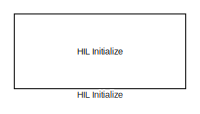
[diagram: root canvas - part 1/3, top center region]
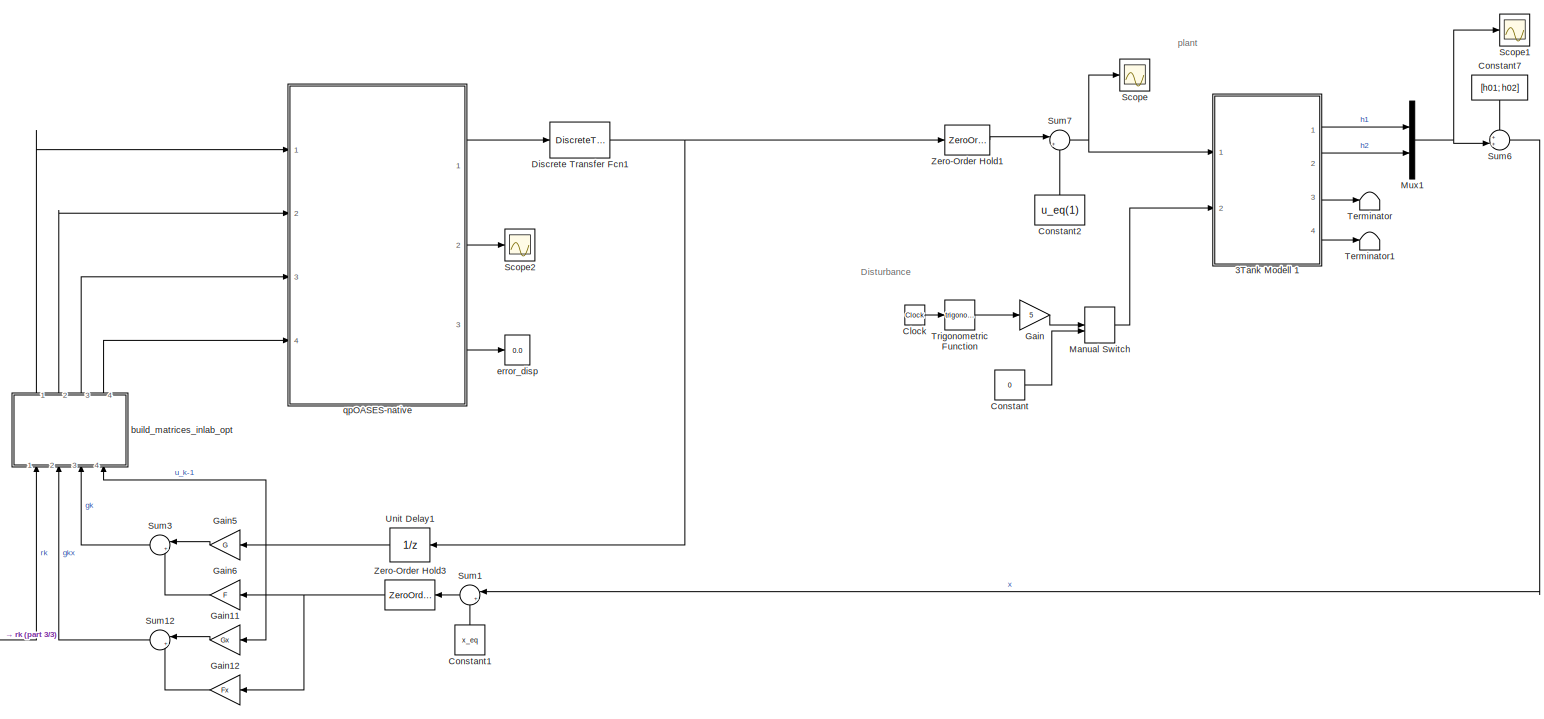
[diagram: root canvas - part 2/3, most of the canvas]
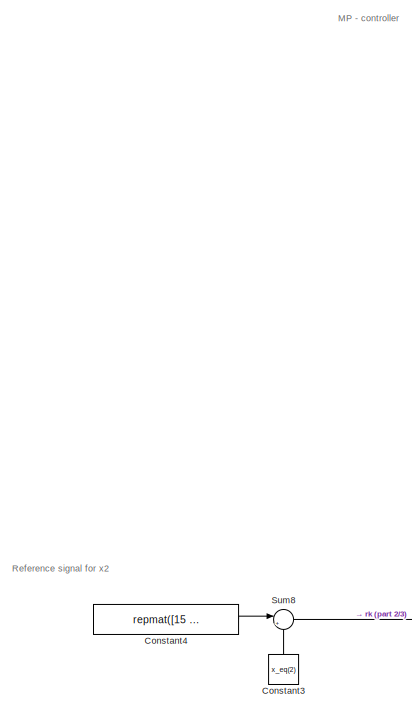
[diagram: root canvas - part 3/3, left side, full height]
MODEL slx_2c5922e8d178
KIND model
CONFIG AbsTol = auto
CONFIG EnableMultiTasking = on
CONFIG FixedStep = Td
CONFIG MaxStep = auto
CONFIG MinStep = auto
CONFIG RelTol = 1e-3
CONFIG SampleTimeConstraint = Unconstrained
CONFIG Solver = ode1
CONFIG SolverName = ode1
CONFIG StartTime = 0.0
CONFIG StopTime = inf
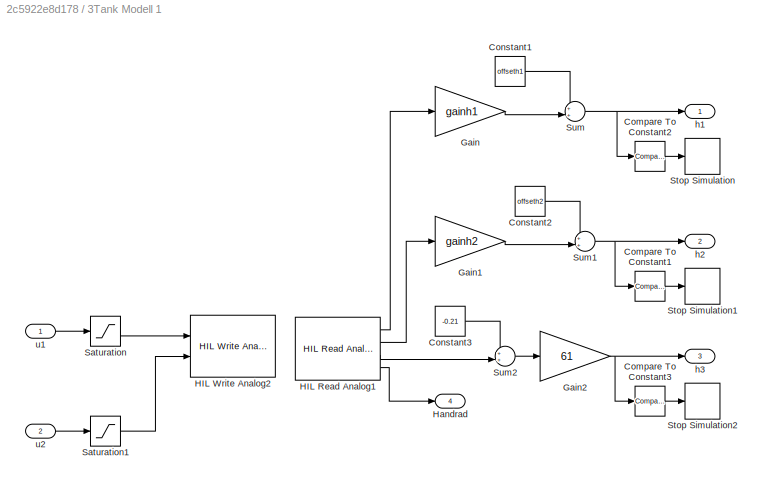
BLOCK [SubSystem] 3Tank Modell 1
  Ports = [2, 4]
  RequestExecContextInheritance = off
BLOCK [Reference] 3Tank Modell 1/Compare To Constant1  REF=simulink/Logic and Bit
Operations/Compare
To Constant
  Ports = [1, 1]
  SourceBlock = simulink/Logic and Bit\nOperations/Compare\nTo Constant
  SourceProductBaseCode = SL
  SourceProductName = Simulink
  SourceType = Compare To Constant
BLOCK [Reference] 3Tank Modell 1/Compare To Constant2  REF=simulink/Logic and Bit
Operations/Compare
To Constant
  Ports = [1, 1]
  SourceBlock = simulink/Logic and Bit\nOperations/Compare\nTo Constant
  SourceProductBaseCode = SL
  SourceProductName = Simulink
  SourceType = Compare To Constant
BLOCK [Reference] 3Tank Modell 1/Compare To Constant3  REF=simulink/Logic and Bit
Operations/Compare
To Constant
  Commented = on
  Ports = [1, 1]
  SourceBlock = simulink/Logic and Bit\nOperations/Compare\nTo Constant
  SourceProductBaseCode = SL
  SourceProductName = Simulink
  SourceType = Compare To Constant
BLOCK [Constant] 3Tank Modell 1/Constant1
  Value = offseth1
BLOCK [Constant] 3Tank Modell 1/Constant2
  Value = offseth2
BLOCK [Constant] 3Tank Modell 1/Constant3
  Value = -0.21
BLOCK [Gain] 3Tank Modell 1/Gain
  Gain = gainh1
  OutDataTypeStr = Inherit: Inherit via internal rule
  ParamDataTypeStr = Inherit: Inherit via internal rule
  SaturateOnIntegerOverflow = off
BLOCK [Gain] 3Tank Modell 1/Gain1
  Gain = gainh2
  OutDataTypeStr = Inherit: Inherit via internal rule
  ParamDataTypeStr = Inherit: Inherit via internal rule
  SaturateOnIntegerOverflow = off
BLOCK [Gain] 3Tank Modell 1/Gain2
  Gain = 61
  OutDataTypeStr = Inherit: Inherit via internal rule
  ParamDataTypeStr = Inherit: Inherit via internal rule
  SaturateOnIntegerOverflow = off
BLOCK [Reference] 3Tank Modell 1/HIL Read Analog1  REF=quarc_library/Data Acquisition/Generic/Immediate I//O/HIL Read Analog
  AttributesFormatString = (%<object_name>)
  Ports = [0, 4]
  SourceBlock = quarc_library/Data Acquisition/Generic/Immediate I//O/HIL Read Analog
  SourceProductName = QUARC Targets
  SourceType = HIL Read Analog
  UserDataPersistent = on
BLOCK [Reference] 3Tank Modell 1/HIL Write Analog2  REF=quarc_library/Data Acquisition/Generic/Immediate I//O/HIL Write Analog
  AttributesFormatString = (%<object_name>)
  Ports = [2]
  SourceBlock = quarc_library/Data Acquisition/Generic/Immediate I//O/HIL Write Analog
  SourceProductName = QUARC Targets
  SourceType = HIL Write Analog
  UserDataPersistent = on
BLOCK [Outport] 3Tank Modell 1/Handrad
  IconDisplay = Port number
  Port = 4
BLOCK [Saturate] 3Tank Modell 1/Saturation
  InputPortMap = u0
  LowerLimit = 0
  Ports = [1, 1]
  UpperLimit = 10
BLOCK [Saturate] 3Tank Modell 1/Saturation1
  InputPortMap = u0
  LowerLimit = 0
  Ports = [1, 1]
  UpperLimit = 10
BLOCK [Stop] 3Tank Modell 1/Stop Simulation
BLOCK [Stop] 3Tank Modell 1/Stop Simulation1
BLOCK [Stop] 3Tank Modell 1/Stop Simulation2
  Commented = on
BLOCK [Sum] 3Tank Modell 1/Sum
  IconShape = round
  InputSameDT = off
  Inputs = ++|
  OutDataTypeStr = Inherit: Inherit via internal rule
  Ports = [2, 1]
  SaturateOnIntegerOverflow = off
BLOCK [Sum] 3Tank Modell 1/Sum1
  IconShape = round
  InputSameDT = off
  Inputs = ++|
  OutDataTypeStr = Inherit: Inherit via internal rule
  Ports = [2, 1]
  SaturateOnIntegerOverflow = off
BLOCK [Sum] 3Tank Modell 1/Sum2
  IconShape = round
  InputSameDT = off
  Inputs = ++|
  OutDataTypeStr = Inherit: Inherit via internal rule
  Ports = [2, 1]
  SaturateOnIntegerOverflow = off
BLOCK [Outport] 3Tank Modell 1/h1
  IconDisplay = Port number
BLOCK [Outport] 3Tank Modell 1/h2
  IconDisplay = Port number
  Port = 2
BLOCK [Outport] 3Tank Modell 1/h3
  IconDisplay = Port number
  Port = 3
BLOCK [Inport] 3Tank Modell 1/u1
  IconDisplay = Port number
BLOCK [Inport] 3Tank Modell 1/u2
  IconDisplay = Port number
  Port = 2
BLOCK [Clock] Clock
BLOCK [Constant] Constant
  Value = 0
BLOCK [Constant] Constant1
  Value = x_eq
BLOCK [Constant] Constant2
  Value = u_eq(1)
BLOCK [Constant] Constant3
  Value = x_eq(2)
BLOCK [Constant] Constant4
  Value = repmat([15 + h(2)],Np,1)
BLOCK [Constant] Constant7
  Value = [h01; h02]
BLOCK [DiscreteTransferFcn] Discrete Transfer Fcn1
  Denominator = [1 -1]
  InputPortMap = u0
  Numerator = [1 0]
  Ports = [1, 1]
  SampleTime = Ts
BLOCK [Gain] Gain
  Gain = 5
  OutDataTypeStr = Inherit: Inherit via internal rule
  ParamDataTypeStr = Inherit: Inherit via internal rule
  SaturateOnIntegerOverflow = off
BLOCK [Gain] Gain11
  Gain = Gx
  Multiplication = Matrix(K*u)
  OutDataTypeStr = Inherit: Inherit via internal rule
  ParamDataTypeStr = Inherit: Inherit via internal rule
  SaturateOnIntegerOverflow = off
BLOCK [Gain] Gain12
  Gain = Fx
  Multiplication = Matrix(K*u)
  OutDataTypeStr = Inherit: Inherit via internal rule
  ParamDataTypeStr = Inherit: Inherit via internal rule
  SaturateOnIntegerOverflow = off
BLOCK [Gain] Gain5
  Gain = G
  Multiplication = Matrix(K*u)
  OutDataTypeStr = Inherit: Inherit via internal rule
  ParamDataTypeStr = Inherit: Inherit via internal rule
  SaturateOnIntegerOverflow = off
BLOCK [Gain] Gain6
  Gain = F
  Multiplication = Matrix(K*u)
  OutDataTypeStr = Inherit: Inherit via internal rule
  ParamDataTypeStr = Inherit: Inherit via internal rule
  SaturateOnIntegerOverflow = off
BLOCK [Reference] HIL Initialize  REF=quarc_library/Data Acquisition/Generic/Configuration/HIL Initialize
  AttributesFormatString = %<object_name> (%<board_type>-%<board_number>)
  Ports = []
  SourceBlock = quarc_library/Data Acquisition/Generic/Configuration/HIL Initialize
  SourceProductName = QUARC Targets
  SourceType = HIL Initialize
  UserDataPersistent = on
BLOCK [ManualSwitch] Manual Switch
BLOCK [Mux] Mux1
  DisplayOption = bar
  Inputs = 2
  Ports = [2, 1]
BLOCK [Scope] Scope
  Floating = off
  NumInputPorts = 1
  Ports = [1]
  ScopeSpecificationString = Simulink.scopes.TimeScopeBlockCfg('CurrentConfiguration', extmgr.ConfigurationSet(extmgr.Configuration('Core','General UI',true),extmgr.Configuration('Core','Source UI',true),extmgr.Configuration('Sources','WiredSimulink',true),extmgr.Configuration('Visuals','Time Domain',true,'SerializedDisplays',{struct('MinYLimReal','3.09203','MaxYLimReal','6.55643','YLabelReal','','MinYLimMag','3.09203','MaxYL...<+1348ch>
BLOCK [Scope] Scope1
  Floating = off
  NumInputPorts = 1
  Ports = [1]
  ScopeSpecificationString = Simulink.scopes.TimeScopeBlockCfg('CurrentConfiguration', extmgr.ConfigurationSet(extmgr.Configuration('Core','General UI',true),extmgr.Configuration('Core','Source UI',true),extmgr.Configuration('Sources','WiredSimulink',true,'DataLoggingVariableName','ScopeData2'),extmgr.Configuration('Visuals','Time Domain',true,'SerializedDisplays',{struct('MinYLimReal','-2.60032','MaxYLimReal','23.54177','YLa...<+1691ch>
BLOCK [Scope] Scope2
  Floating = off
  NumInputPorts = 1
  Ports = [1]
  ScopeSpecificationString = Simulink.scopes.TimeScopeBlockCfg('CurrentConfiguration', extmgr.ConfigurationSet(extmgr.Configuration('Core','General UI',true),extmgr.Configuration('Core','Source UI',true),extmgr.Configuration('Sources','WiredSimulink',true,'DataLoggingVariableName','ScopeData1'),extmgr.Configuration('Visuals','Time Domain',true,'SerializedDisplays',{struct('MinYLimReal','-2.00000','MaxYLimReal','18.00000','YLa...<+1393ch>
BLOCK [Sum] Sum1
  IconShape = round
  InputSameDT = off
  Inputs = |+-
  OutDataTypeStr = Inherit: Inherit via internal rule
  Ports = [2, 1]
  SaturateOnIntegerOverflow = off
BLOCK [Sum] Sum12
  IconShape = round
  InputSameDT = off
  Inputs = |++
  OutDataTypeStr = Inherit: Inherit via internal rule
  Ports = [2, 1]
  SaturateOnIntegerOverflow = off
BLOCK [Sum] Sum3
  IconShape = round
  InputSameDT = off
  Inputs = |++
  OutDataTypeStr = Inherit: Inherit via internal rule
  Ports = [2, 1]
  SaturateOnIntegerOverflow = off
BLOCK [Sum] Sum6
  IconShape = round
  InputSameDT = off
  Inputs = ++|
  OutDataTypeStr = Inherit: Inherit via internal rule
  Ports = [2, 1]
  SaturateOnIntegerOverflow = off
BLOCK [Sum] Sum7
  IconShape = round
  InputSameDT = off
  Inputs = |++
  OutDataTypeStr = Inherit: Inherit via internal rule
  Ports = [2, 1]
  SaturateOnIntegerOverflow = off
BLOCK [Sum] Sum8
  IconShape = round
  InputSameDT = off
  Inputs = |+-
  OutDataTypeStr = Inherit: Inherit via internal rule
  Ports = [2, 1]
  SaturateOnIntegerOverflow = off
BLOCK [Terminator] Terminator
BLOCK [Terminator] Terminator1
BLOCK [Trigonometry] Trigonometric Function
  Ports = [1, 1]
BLOCK [UnitDelay] Unit Delay1
  InputProcessing = Elements as channels (sample based)
  SampleTime = Ts
BLOCK [ZeroOrderHold] Zero-Order Hold1
  SampleTime = Ts
BLOCK [ZeroOrderHold] Zero-Order Hold3
  SampleTime = Ts
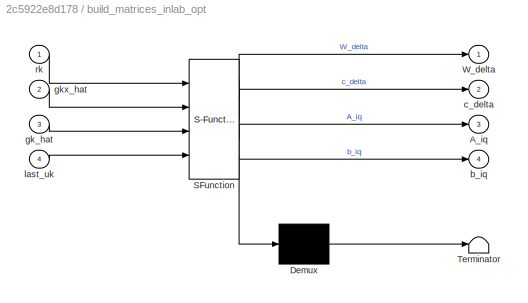
BLOCK [SubSystem] build_matrices_inlab_opt
  ErrorFcn = Stateflow.Translate.translate
  PermitHierarchicalResolution = ExplicitOnly
  Ports = [4, 4]
  RequestExecContextInheritance = off
  SFBlockType = MATLAB Function
  TreatAsAtomicUnit = on
BLOCK [Demux] build_matrices_inlab_opt/ Demux 
  Outputs = 1
  Ports = [1, 1]
BLOCK [S-Function] build_matrices_inlab_opt/ SFunction 
  EnableBusSupport = on
  FunctionName = sf_sfun
  Parameters = H,Hx,L,M,Nc,Np,Q,R,h,m,n,p,roh,u_eq,u_lower_limit,u_upper_limit,x_eq,x_lower_limit,x_upper_limit
  PortCounts = [4 5]
  Ports = [4, 5]
  SFcnIsStateOwnerBlock = off
  SFunctionDeploymentMode = off
  Tag = Stateflow S-Function MPC 2
BLOCK [Terminator] build_matrices_inlab_opt/ Terminator 
BLOCK [Outport] build_matrices_inlab_opt/A_iq
  IconDisplay = Port number
  Port = 3
BLOCK [Outport] build_matrices_inlab_opt/W_delta
  IconDisplay = Port number
BLOCK [Outport] build_matrices_inlab_opt/b_iq
  IconDisplay = Port number
  Port = 4
BLOCK [Outport] build_matrices_inlab_opt/c_delta
  IconDisplay = Port number
  Port = 2
BLOCK [Inport] build_matrices_inlab_opt/gk_hat
  IconDisplay = Port number
  Port = 3
BLOCK [Inport] build_matrices_inlab_opt/gkx_hat
  IconDisplay = Port number
  Port = 2
BLOCK [Inport] build_matrices_inlab_opt/last_uk
  IconDisplay = Port number
  Port = 4
BLOCK [Inport] build_matrices_inlab_opt/rk
  IconDisplay = Port number
BLOCK [Display] error_disp
  Decimation = 1
  Ports = [1]
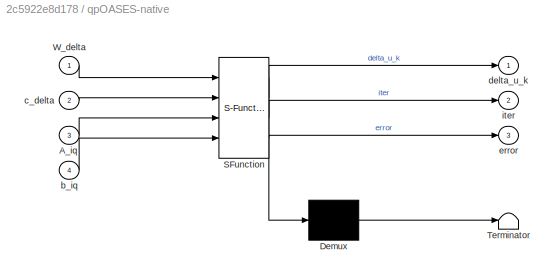
BLOCK [SubSystem] qpOASES-native
  ErrorFcn = Stateflow.Translate.translate
  PermitHierarchicalResolution = ExplicitOnly
  Ports = [4, 3]
  RequestExecContextInheritance = off
  SFBlockType = MATLAB Function
  TreatAsAtomicUnit = on
BLOCK [Demux] qpOASES-native/ Demux 
  Outputs = 1
  Ports = [1, 1]
BLOCK [S-Function] qpOASES-native/ SFunction 
  EnableBusSupport = on
  FunctionName = sf_sfun
  Parameters = Nc,m
  PortCounts = [4 4]
  Ports = [4, 4]
  SFcnIsStateOwnerBlock = off
  SFunctionDeploymentMode = off
  Tag = Stateflow S-Function MPC 5
BLOCK [Terminator] qpOASES-native/ Terminator 
BLOCK [Inport] qpOASES-native/A_iq
  IconDisplay = Port number
  Port = 3
BLOCK [Inport] qpOASES-native/W_delta
  IconDisplay = Port number
BLOCK [Inport] qpOASES-native/b_iq
  IconDisplay = Port number
  Port = 4
BLOCK [Inport] qpOASES-native/c_delta
  IconDisplay = Port number
  Port = 2
BLOCK [Outport] qpOASES-native/delta_u_k
  IconDisplay = Port number
BLOCK [Outport] qpOASES-native/error
  IconDisplay = Port number
  Port = 3
BLOCK [Outport] qpOASES-native/iter
  IconDisplay = Port number
  Port = 2
ANNOTATION (root): Disturbance
ANNOTATION (root): MP - controller
ANNOTATION (root): Reference signal for x2
ANNOTATION (root): plant
LINE 3Tank Modell 1/Compare To Constant1:1 -> 3Tank Modell 1/Stop Simulation1:1
LINE 3Tank Modell 1/Compare To Constant2:1 -> 3Tank Modell 1/Stop Simulation:1
LINE 3Tank Modell 1/Compare To Constant3:1 -> 3Tank Modell 1/Stop Simulation2:1
LINE 3Tank Modell 1/Constant1:1 -> 3Tank Modell 1/Sum:1
LINE 3Tank Modell 1/Constant2:1 -> 3Tank Modell 1/Sum1:1
LINE 3Tank Modell 1/Constant3:1 -> 3Tank Modell 1/Sum2:1
LINE 3Tank Modell 1/Gain1:1 -> 3Tank Modell 1/Sum1:2
NET 3Tank Modell 1/Gain2:1 -> 3Tank Modell 1/Compare To Constant3:1, 3Tank Modell 1/h3:1
LINE 3Tank Modell 1/Gain:1 -> 3Tank Modell 1/Sum:2
LINE 3Tank Modell 1/HIL Read Analog1:1 -> 3Tank Modell 1/Gain:1
LINE 3Tank Modell 1/HIL Read Analog1:2 -> 3Tank Modell 1/Gain1:1
LINE 3Tank Modell 1/HIL Read Analog1:3 -> 3Tank Modell 1/Sum2:2
LINE 3Tank Modell 1/HIL Read Analog1:4 -> 3Tank Modell 1/Handrad:1
LINE 3Tank Modell 1/Saturation1:1 -> 3Tank Modell 1/HIL Write Analog2:2
LINE 3Tank Modell 1/Saturation:1 -> 3Tank Modell 1/HIL Write Analog2:1
NET 3Tank Modell 1/Sum1:1 -> 3Tank Modell 1/Compare To Constant1:1, 3Tank Modell 1/h2:1
LINE 3Tank Modell 1/Sum2:1 -> 3Tank Modell 1/Gain2:1
NET 3Tank Modell 1/Sum:1 -> 3Tank Modell 1/Compare To Constant2:1, 3Tank Modell 1/h1:1
LINE 3Tank Modell 1/u1:1 -> 3Tank Modell 1/Saturation:1
LINE 3Tank Modell 1/u2:1 -> 3Tank Modell 1/Saturation1:1
LINE 3Tank Modell 1:1 -> Mux1:1
LINE 3Tank Modell 1:2 -> Mux1:2
LINE 3Tank Modell 1:3 -> Terminator:1
LINE 3Tank Modell 1:4 -> Terminator1:1
LINE Clock:1 -> Trigonometric Function:1
LINE Constant1:1 -> Sum1:2
LINE Constant2:1 -> Sum7:2
LINE Constant3:1 -> Sum8:2
LINE Constant4:1 -> Sum8:1
LINE Constant7:1 -> Sum6:1
LINE Constant:1 -> Manual Switch:2
NET Discrete Transfer Fcn1:1 -> Unit Delay1:1, Zero-Order Hold1:1
LINE Gain11:1 -> Sum12:1
LINE Gain12:1 -> Sum12:2
LINE Gain5:1 -> Sum3:1
LINE Gain6:1 -> Sum3:2
LINE Gain:1 -> Manual Switch:1
LINE Manual Switch:1 -> 3Tank Modell 1:2
NET Mux1:1 -> Scope1:1, Sum6:2
LINE Sum12:1 -> build_matrices_inlab_opt:2
LINE Sum1:1 -> Zero-Order Hold3:1
LINE Sum3:1 -> build_matrices_inlab_opt:3
LINE Sum6:1 -> Sum1:1
NET Sum7:1 -> 3Tank Modell 1:1, Scope:1
LINE Sum8:1 -> build_matrices_inlab_opt:1
LINE Trigonometric Function:1 -> Gain:1
NET Unit Delay1:1 -> Gain11:1, Gain5:1, build_matrices_inlab_opt:4
LINE Zero-Order Hold1:1 -> Sum7:1
NET Zero-Order Hold3:1 -> Gain12:1, Gain6:1
LINE build_matrices_inlab_opt:1 -> qpOASES-native:1
LINE build_matrices_inlab_opt:2 -> qpOASES-native:2
LINE build_matrices_inlab_opt:3 -> qpOASES-native:3
LINE build_matrices_inlab_opt:4 -> qpOASES-native:4
LINE qpOASES-native:1 -> Discrete Transfer Fcn1:1
LINE qpOASES-native:2 -> Scope2:1
LINE qpOASES-native:3 -> error_disp:1
note: NET lines group one-source signal fan-out (src -> all destinations, sorted); 1:1 wires keep LINE
CHART build_matrices_inlab_opt states=1 transitions=1
  STATE_LABEL 'eML_blk_kernel()'
  STATE_LABEL 'SCRIPT:\nfunction [W_delta, c_delta, A_iq, b_iq] = fcn(rk, gkx_hat, gk_hat, last_uk, Hx, Q, ...\n    R, Np, Nc, m, n, p, u_eq, x_eq, h, x_upper_limit, x_lower_limit, u_upper_limit, ...\n    u_lower_limit, H, L, M, roh)\n    \n    %% Constraints\n    % constrint for the actuatiting quantity   \n    u_min = -u_eq(1) + u_lower_limit;\n    u_max = u_min + u_upper_limit - u_lower_limit;\n    actuating_constrain...<+980ch>'
CHART qpOASES-native states=1 transitions=1
  STATE_LABEL 'eML_blk_kernel()'
  STATE_LABEL "SCRIPT:\nfunction [delta_u_k, iter, error] = fcn(W_delta, c_delta, A_iq, b_iq, m, Nc)\n    \n    persistent initialized options;\n    % qpOASES uses row-major matrix storage (Matlab: column-major)!!!\n    A_iq_tr = A_iq';\n    \n    delta_u_hat_k = coder.nullcopy(zeros(m * Nc, 1));\n    lambda = coder.nullcopy(zeros(size(W_delta, 1) + size(A_iq, 1), 1));\n    J = coder.nullcopy(double(0));\n    iter = int32...<+767ch>"
